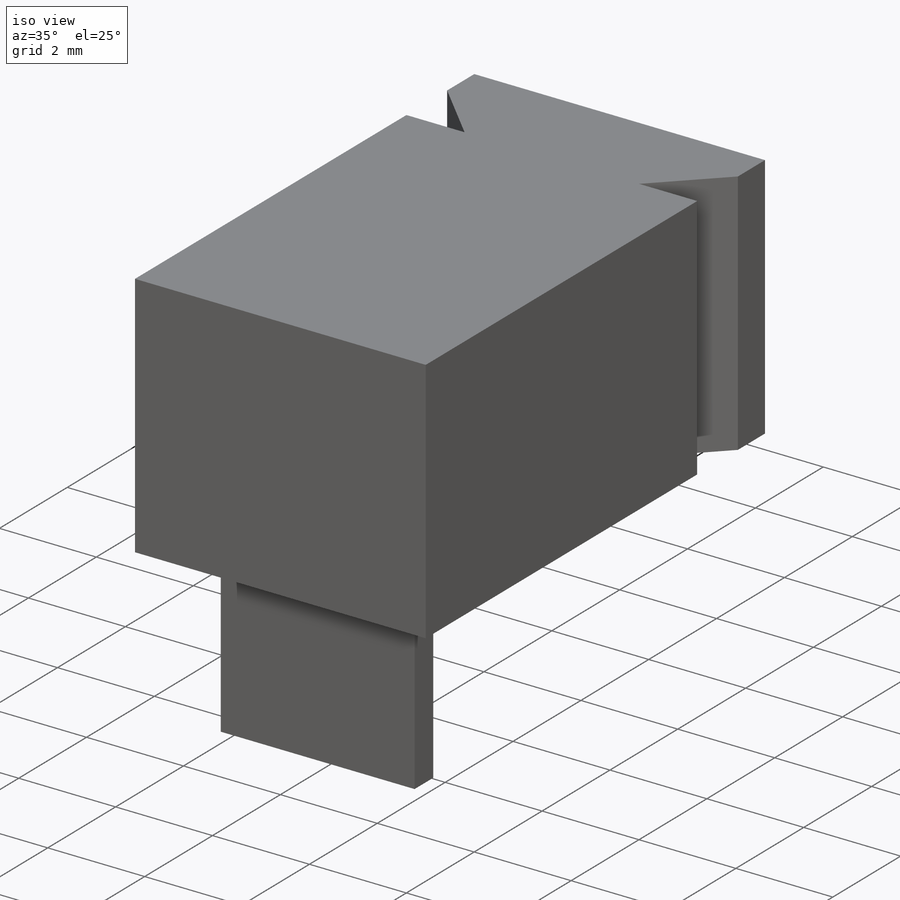
[diagram: iso view]
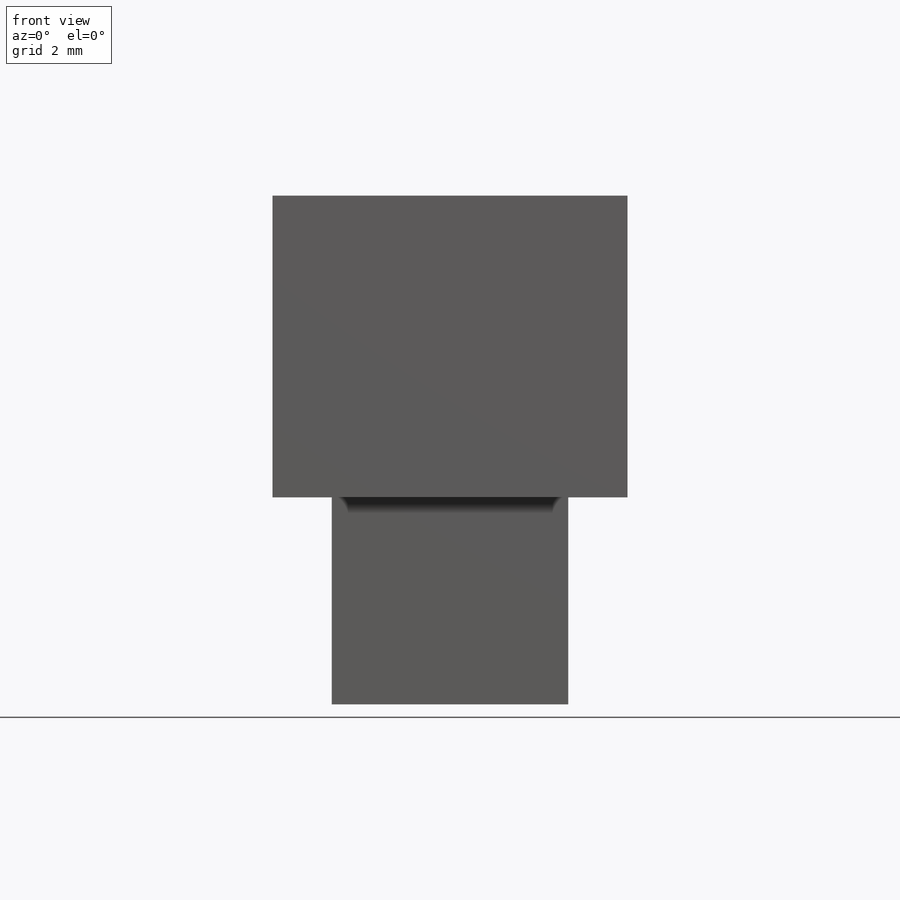
[diagram: front view]
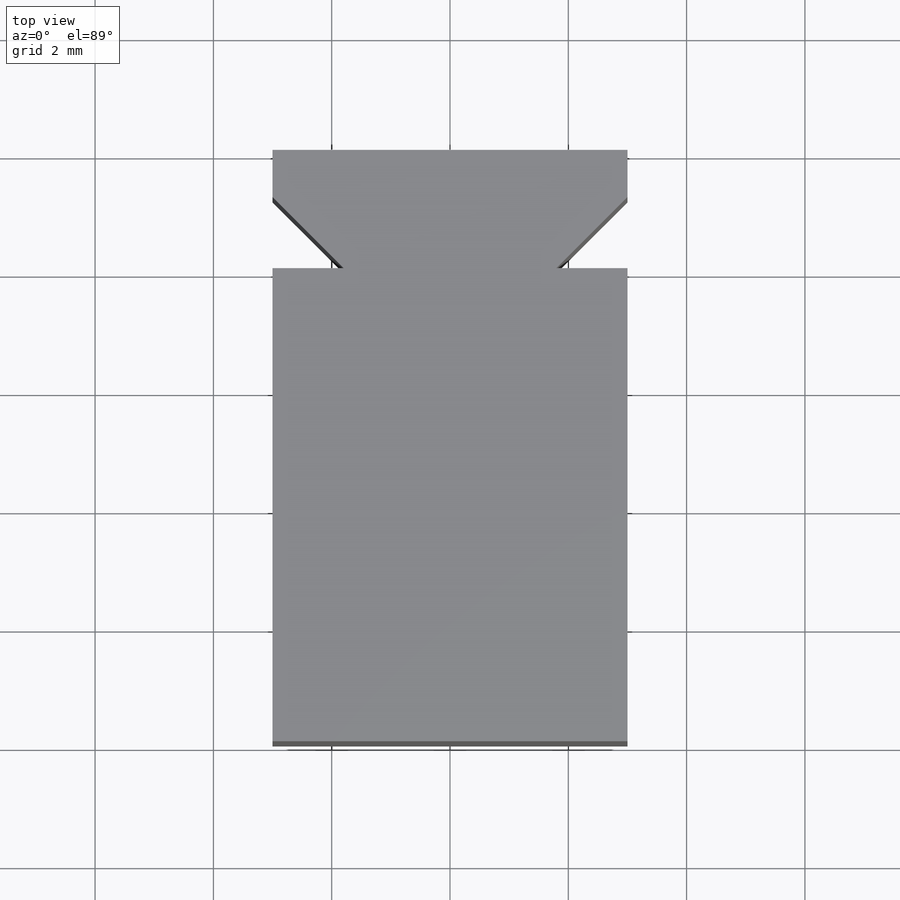
[diagram: top view]
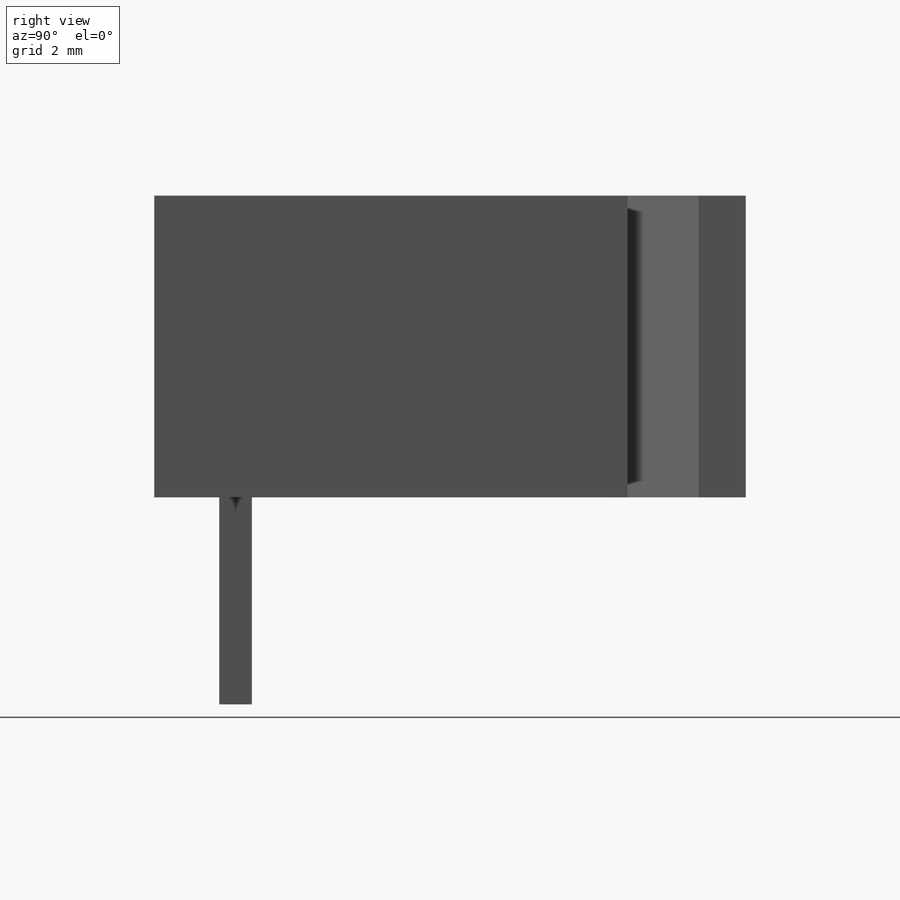
[diagram: right view]
SOLIDWORKS PART (.sldprt)
format: sldprt  version: not decoded by parser v0  size: 236,032 bytes
history: native  units: mm
features: sketch x3, extrude x3, material x1 (+11 scaffold rows collapsed)
feature tree (18):
  scaffold x11  (default folders/planes/origin — collapsed)
  material  "Material <not specified>"
  sketch  "Sketch1"  dims[D1=6.0mm D2=8.0mm]
  extrude  "Boss-Extrude1"  Depth=5.1mm
  sketch  "Sketch2"  dims[c1.D1=10.0mm c1.D2=~1.172592mm c2.D2=45.0deg c2.D3=0.8mm]
  extrude  "Boss-Extrude2"  [1 undecoded]
  sketch  "Sketch3"  dims[D1=1.1mm D2=0.55mm D3=1.0mm D4=1.0mm]
  extrude  "Boss-Extrude3"  Depth=3.5mm
decode coverage: 5 of 6 modeling features carry decoded parameters
note: ~ marks probable driven/reference dimensions
note: 1 parameter value undecoded
note: suppression state not decoded; provenance and decode notes live in map.json
